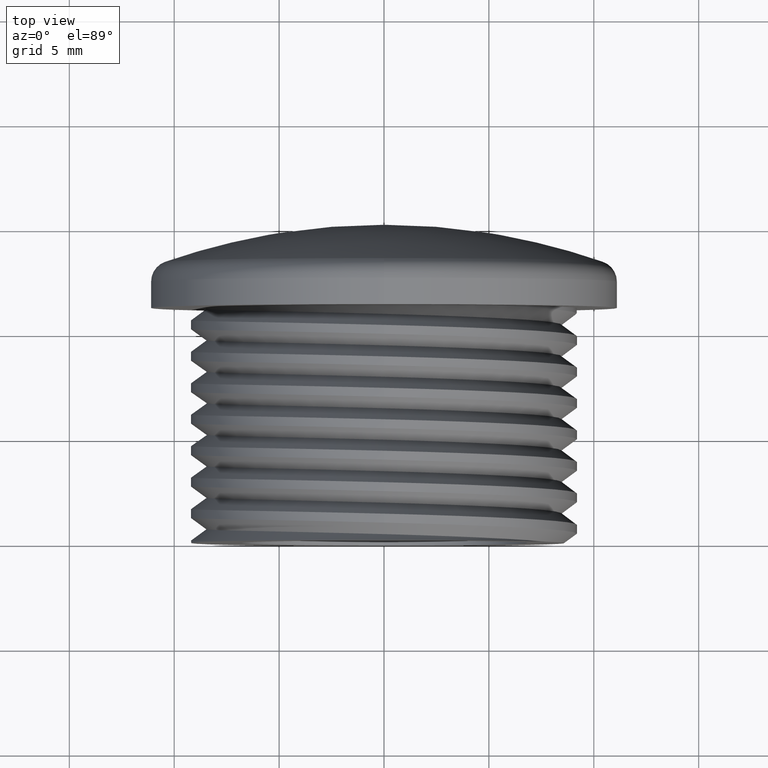
[diagram: clean part render]
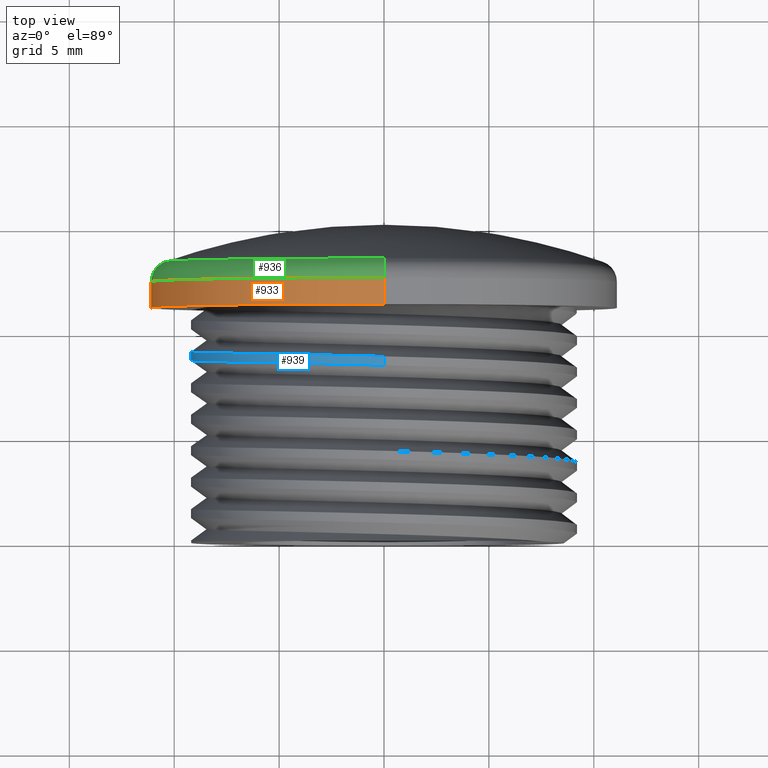
[diagram: same view with three faces highlighted in distinct colors, each labeled with its STEP entity id]
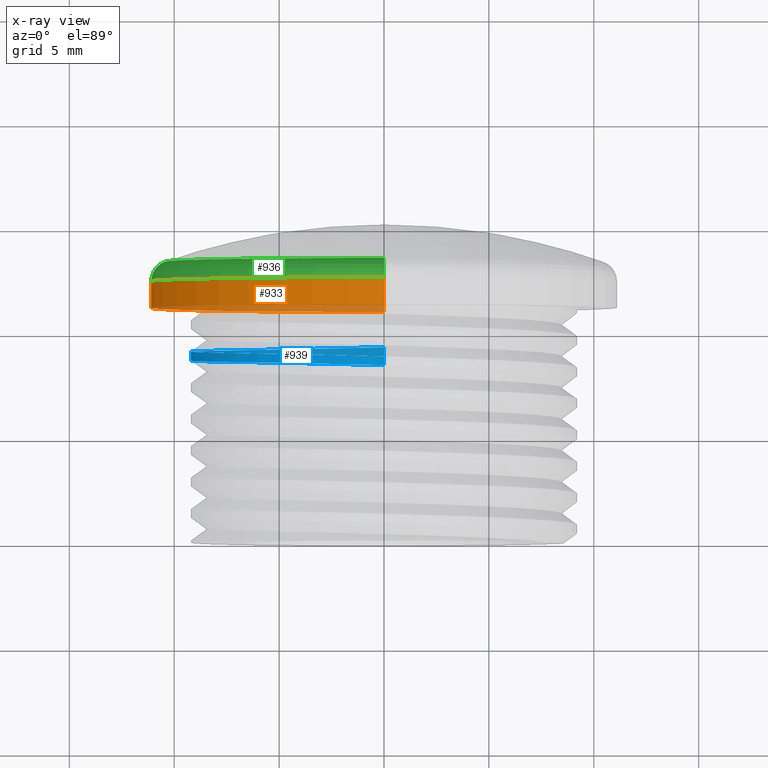
[diagram: x-ray of the same camera — body ghosted, the three highlighted faces saturated]
A machine part, top view with three faces highlighted in distinct colors.
The next image is the same camera in x-ray (body ghosted, the three faces saturated) — at least one of them is partly hidden behind the body in this view.
Their STEP definitions:

[orange] entity #933 — the highlighted cylindrical surface (partial cylindrical patch) has radius 11.1 mm, axis along (-0, -1, -0).
#521 = ORIENTED_EDGE ( 'NONE', *, *, #881, .T. ) ;
#575 = ORIENTED_EDGE ( 'NONE', *, *, #890, .F. ) ;
#602 = ORIENTED_EDGE ( 'NONE', *, *, #892, .F. ) ;
#626 = ORIENTED_EDGE ( 'NONE', *, *, #896, .T. ) ;
#630 = EDGE_LOOP ( 'NONE', ( #602, #521, #626, #575 ) ) ;
#705 = VERTEX_POINT ( 'NONE', #750 ) ;
#713 = VERTEX_POINT ( 'NONE', #810 ) ;
#720 = VERTEX_POINT ( 'NONE', #794 ) ;
#721 = VERTEX_POINT ( 'NONE', #803 ) ;
#750 = CARTESIAN_POINT ( 'NONE',  ( 1.359357947053562200E-015, 11.15795425656142800, 11.10000000000000000 ) ) ;
#794 = CARTESIAN_POINT ( 'NONE',  ( 1.359357947053562200E-015, 12.41687276769891700, 11.10000000000000000 ) ) ;
#803 = CARTESIAN_POINT ( 'NONE',  ( 0.0000000000000000000, 12.41687276769891700, -11.10000000000000000 ) ) ;
#810 = CARTESIAN_POINT ( 'NONE',  ( 0.0000000000000000000, 11.15795425656142800, -11.10000000000000000 ) ) ;
#881 = EDGE_CURVE ( 'NONE', #720, #721, #2108, .T. ) ;
#890 = EDGE_CURVE ( 'NONE', #705, #713, #2106, .T. ) ;
#892 = EDGE_CURVE ( 'NONE', #720, #705, #2230, .T. ) ;
#896 = EDGE_CURVE ( 'NONE', #721, #713, #2232, .T. ) ;
#933 = ADVANCED_FACE ( 'NONE', ( #1770 ), #1771, .T. ) ;
#1742 = DIRECTION ( 'NONE',  ( 0.0000000000000000000, 0.0000000000000000000, -1.000000000000000000 ) ) ;
#1770 = FACE_OUTER_BOUND ( 'NONE', #630, .T. ) ;
#1771 = CYLINDRICAL_SURFACE ( 'NONE', #2156, 11.10000000000000000 ) ;
#1772 = DIRECTION ( 'NONE',  ( -0.0000000000000000000, -1.000000000000000000, -0.0000000000000000000 ) ) ;
#1775 = CARTESIAN_POINT ( 'NONE',  ( 0.0000000000000000000, 21.15795425656142800, 0.0000000000000000000 ) ) ;
#2105 = AXIS2_PLACEMENT_3D ( 'NONE', #2565, #2568, #2588 ) ;
#2106 = CIRCLE ( 'NONE', #2116, 11.10000000000000000 ) ;
#2108 = CIRCLE ( 'NONE', #2105, 11.10000000000000000 ) ;
#2114 = VECTOR ( 'NONE', #2247, 1000.000000000000000 ) ;
#2116 = AXIS2_PLACEMENT_3D ( 'NONE', #2242, #2205, #2235 ) ;
#2117 = VECTOR ( 'NONE', #2215, 1000.000000000000000 ) ;
#2156 = AXIS2_PLACEMENT_3D ( 'NONE', #1775, #1772, #1742 ) ;
#2205 = DIRECTION ( 'NONE',  ( -0.0000000000000000000, -1.000000000000000000, -0.0000000000000000000 ) ) ;
#2215 = DIRECTION ( 'NONE',  ( -0.0000000000000000000, -1.000000000000000000, -0.0000000000000000000 ) ) ;
#2230 = LINE ( 'NONE', #2243, #2117 ) ;
#2232 = LINE ( 'NONE', #2241, #2114 ) ;
#2235 = DIRECTION ( 'NONE',  ( 0.0000000000000000000, 0.0000000000000000000, 1.000000000000000000 ) ) ;
#2241 = CARTESIAN_POINT ( 'NONE',  ( 0.0000000000000000000, 21.15795425656142800, -11.10000000000000000 ) ) ;
#2242 = CARTESIAN_POINT ( 'NONE',  ( 0.0000000000000000000, 11.15795425656142800, 0.0000000000000000000 ) ) ;
#2243 = CARTESIAN_POINT ( 'NONE',  ( 1.359357947053562200E-015, 21.15795425656142800, 11.10000000000000000 ) ) ;
#2247 = DIRECTION ( 'NONE',  ( -0.0000000000000000000, -1.000000000000000000, -0.0000000000000000000 ) ) ;
#2565 = CARTESIAN_POINT ( 'NONE',  ( 0.0000000000000000000, 12.41687276769891700, 0.0000000000000000000 ) ) ;
#2568 = DIRECTION ( 'NONE',  ( -0.0000000000000000000, -1.000000000000000000, -0.0000000000000000000 ) ) ;
#2588 = DIRECTION ( 'NONE',  ( 0.0000000000000000000, 0.0000000000000000000, -1.000000000000000000 ) ) ;

[blue] entity #939 — the highlighted cylindrical surface (partial cylindrical patch) has radius 9.2 mm, axis along (-0, -1, -0).
#350 = CARTESIAN_POINT ( 'NONE',  ( 1.126675055215564800E-015, 39.89106148374602900, 9.199999999999999300 ) ) ;
#352 = LINE ( 'NONE', #350, #2080 ) ;
#353 = DIRECTION ( 'NONE',  ( -0.0000000000000000000, -1.000000000000000000, -0.0000000000000000000 ) ) ;
#365 = DIRECTION ( 'NONE',  ( -0.0000000000000000000, -1.000000000000000000, -0.0000000000000000000 ) ) ;
#367 = LINE ( 'NONE', #368, #2082 ) ;
#368 = CARTESIAN_POINT ( 'NONE',  ( 0.0000000000000000000, 39.89106148374602900, -9.199999999999999300 ) ) ;
#459 = ORIENTED_EDGE ( 'NONE', *, *, #838, .F. ) ;
#460 = ORIENTED_EDGE ( 'NONE', *, *, #840, .T. ) ;
#489 = ORIENTED_EDGE ( 'NONE', *, *, #853, .T. ) ;
#503 = ORIENTED_EDGE ( 'NONE', *, *, #865, .T. ) ;
#663 = EDGE_LOOP ( 'NONE', ( #459, #489, #460, #503 ) ) ;
#669 = CARTESIAN_POINT ( 'NONE',  ( -1.226977967534813800E-011, 9.444690285272459500, -9.199999999999995700 ) ) ;
#681 = VERTEX_POINT ( 'NONE', #669 ) ;
#684 = VERTEX_POINT ( 'NONE', #732 ) ;
#697 = VERTEX_POINT ( 'NONE', #768 ) ;
#724 = VERTEX_POINT ( 'NONE', #800 ) ;
#732 = CARTESIAN_POINT ( 'NONE',  ( -1.690012582823347700E-015, 8.694690285272763200, 9.199999999999999300 ) ) ;
#768 = CARTESIAN_POINT ( 'NONE',  ( 5.633375276077824100E-016, 9.021218227850093600, -9.199999999999999300 ) ) ;
#800 = CARTESIAN_POINT ( 'NONE',  ( -1.690012582823347300E-015, 8.271218227850095400, 9.199999999999999300 ) ) ;
#838 = EDGE_CURVE ( 'NONE', #684, #724, #352, .T. ) ;
#840 = EDGE_CURVE ( 'NONE', #681, #697, #367, .T. ) ;
#853 = EDGE_CURVE ( 'NONE', #684, #681, #2717, .T. ) ;
#865 = EDGE_CURVE ( 'NONE', #697, #724, #2697, .T. ) ;
#939 = ADVANCED_FACE ( 'NONE', ( #1794 ), #1814, .T. ) ;
#1794 = FACE_OUTER_BOUND ( 'NONE', #663, .T. ) ;
#1810 = CARTESIAN_POINT ( 'NONE',  ( 0.0000000000000000000, 39.89106148374602900, 0.0000000000000000000 ) ) ;
#1814 = CYLINDRICAL_SURFACE ( 'NONE', #2164, 9.199999999999999300 ) ;
#1815 = DIRECTION ( 'NONE',  ( -0.0000000000000000000, -1.000000000000000000, -0.0000000000000000000 ) ) ;
#1816 = DIRECTION ( 'NONE',  ( 0.0000000000000000000, 0.0000000000000000000, -1.000000000000000000 ) ) ;
#2080 = VECTOR ( 'NONE', #353, 1000.000000000000000 ) ;
#2082 = VECTOR ( 'NONE', #365, 1000.000000000000000 ) ;
#2164 = AXIS2_PLACEMENT_3D ( 'NONE', #1810, #1815, #1816 ) ;
#2399 = CARTESIAN_POINT ( 'NONE',  ( -9.199999999999999300, 9.069690285272761400, -1.126675055215565000E-015 ) ) ;
#2400 = CARTESIAN_POINT ( 'NONE',  ( -6.505382386916237700, 9.257190285272761400, -6.505382386916238600 ) ) ;
#2404 = CARTESIAN_POINT ( 'NONE',  ( -9.200000000000004600, 9.163440285272761400, -3.810764773832475700 ) ) ;
#2406 = CARTESIAN_POINT ( 'NONE',  ( -9.200000000000004600, 8.975940285272761400, 3.810764773832473900 ) ) ;
#2408 = CARTESIAN_POINT ( 'NONE',  ( -1.690012582823347700E-015, 8.694690285272763200, 9.199999999999999300 ) ) ;
#2409 = CARTESIAN_POINT ( 'NONE',  ( -3.810764773837557000, 9.350940285272585600, -9.199999999994924200 ) ) ;
#2410 = CARTESIAN_POINT ( 'NONE',  ( -6.505382386916239500, 8.882190285272761400, 6.505382386916237700 ) ) ;
#2412 = CARTESIAN_POINT ( 'NONE',  ( -1.226977967534813800E-011, 9.444690285272459500, -9.199999999999995700 ) ) ;
#2413 = CARTESIAN_POINT ( 'NONE',  ( -3.810764773832481000, 8.788440285272761400, 9.200000000000002800 ) ) ;
#2472 = CARTESIAN_POINT ( 'NONE',  ( 5.633375276077824100E-016, 9.021218227850093600, -9.199999999999999300 ) ) ;
#2486 = CARTESIAN_POINT ( 'NONE',  ( -3.810764773832479700, 8.927468227850106100, -9.200000000000018800 ) ) ;
#2495 = CARTESIAN_POINT ( 'NONE',  ( -6.505382386916245700, 8.833718227850104300, -6.505382386916246600 ) ) ;
#2496 = CARTESIAN_POINT ( 'NONE',  ( -1.690012582823347300E-015, 8.271218227850095400, 9.199999999999999300 ) ) ;
#2497 = CARTESIAN_POINT ( 'NONE',  ( -3.810764773832486400, 8.364968227850109600, 9.200000000000017100 ) ) ;
#2498 = CARTESIAN_POINT ( 'NONE',  ( -9.200000000000018800, 8.739968227850107900, -3.810764773832481000 ) ) ;
#2500 = CARTESIAN_POINT ( 'NONE',  ( -9.200000000000018800, 8.552468227850106100, 3.810764773832478800 ) ) ;
#2507 = CARTESIAN_POINT ( 'NONE',  ( -6.505382386916247500, 8.458718227850106100, 6.505382386916245700 ) ) ;
#2508 = CARTESIAN_POINT ( 'NONE',  ( -9.200000000000013500, 8.646218227850107900, -1.126675055215566600E-015 ) ) ;
#2697 =( BOUNDED_CURVE ( )  B_SPLINE_CURVE ( 2, ( #2472, #2486, #2495, #2498, #2508, #2500, #2507, #2497, #2496 ),
 .UNSPECIFIED., .F., .T. ) 
 B_SPLINE_CURVE_WITH_KNOTS ( ( 3, 2, 2, 2, 3 ),
 ( 0.08263762000673384500, 0.08988826969231500400, 0.09713891937789621800, 0.1043895690634773800, 0.1116402187490585900 ),
 .UNSPECIFIED. ) 
 CURVE ( )  GEOMETRIC_REPRESENTATION_ITEM ( )  RATIONAL_B_SPLINE_CURVE ( ( 1.000000000000000000, 0.9238795325112867400, 1.000000000000000000, 0.9238795325112867400, 1.000000000000000000, 0.9238795325112867400, 1.000000000000000000, 0.9238795325112867400, 1.000000000000000000 ) ) 
 REPRESENTATION_ITEM ( '' )  );
#2717 =( BOUNDED_CURVE ( )  B_SPLINE_CURVE ( 2, ( #2408, #2413, #2410, #2406, #2399, #2404, #2400, #2409, #2412 ),
 .UNSPECIFIED., .F., .F. ) 
 B_SPLINE_CURVE_WITH_KNOTS ( ( 3, 2, 2, 2, 3 ),
 ( 0.3378533863008215100, 0.3451035153012365100, 0.3523536443016516100, 0.3596037733020666100, 0.3668539023024817200 ),
 .UNSPECIFIED. ) 
 CURVE ( )  GEOMETRIC_REPRESENTATION_ITEM ( )  RATIONAL_B_SPLINE_CURVE ( ( 1.000000000000000000, 0.9238795325112867400, 1.000000000000000000, 0.9238795325112867400, 1.000000000000000000, 0.9238795325112867400, 1.000000000000000000, 0.9238795325114194100, 0.9999999999998673300 ) ) 
 REPRESENTATION_ITEM ( '' )  );

[green] entity #936 — the highlighted toroidal blend (fillet) surface has major radius 10.1 mm and minor (blend) radius 1 mm.
#583 = ORIENTED_EDGE ( 'NONE', *, *, #881, .F. ) ;
#591 = ORIENTED_EDGE ( 'NONE', *, *, #899, .F. ) ;
#612 = ORIENTED_EDGE ( 'NONE', *, *, #903, .F. ) ;
#616 = ORIENTED_EDGE ( 'NONE', *, *, #889, .T. ) ;
#618 = ORIENTED_EDGE ( 'NONE', *, *, #911, .F. ) ;
#647 = EDGE_LOOP ( 'NONE', ( #618, #612, #591, #616, #583 ) ) ;
#717 = VERTEX_POINT ( 'NONE', #797 ) ;
#720 = VERTEX_POINT ( 'NONE', #794 ) ;
#721 = VERTEX_POINT ( 'NONE', #803 ) ;
#722 = VERTEX_POINT ( 'NONE', #801 ) ;
#741 = VERTEX_POINT ( 'NONE', #791 ) ;
#791 = CARTESIAN_POINT ( 'NONE',  ( -10.42838178621515700, 13.36141784469744600, 0.0000000000000000000 ) ) ;
#794 = CARTESIAN_POINT ( 'NONE',  ( 1.359357947053562200E-015, 12.41687276769891700, 11.10000000000000000 ) ) ;
#797 = CARTESIAN_POINT ( 'NONE',  ( 1.318233192265530200E-015, 13.36141784469744400, 10.42838178621518200 ) ) ;
#801 = CARTESIAN_POINT ( 'NONE',  ( -3.851859888774471700E-031, 13.36141784469744400, -10.42838178621518200 ) ) ;
#803 = CARTESIAN_POINT ( 'NONE',  ( 0.0000000000000000000, 12.41687276769891700, -11.10000000000000000 ) ) ;
#881 = EDGE_CURVE ( 'NONE', #720, #721, #2108, .T. ) ;
#889 = EDGE_CURVE ( 'NONE', #722, #721, #2102, .T. ) ;
#899 = EDGE_CURVE ( 'NONE', #722, #741, #2123, .T. ) ;
#903 = EDGE_CURVE ( 'NONE', #741, #717, #2127, .T. ) ;
#911 = EDGE_CURVE ( 'NONE', #717, #720, #2134, .T. ) ;
#936 = ADVANCED_FACE ( 'NONE', ( #1805 ), #2163, .T. ) ;
#1798 = DIRECTION ( 'NONE',  ( 0.0000000000000000000, 0.0000000000000000000, -1.000000000000000000 ) ) ;
#1805 = FACE_OUTER_BOUND ( 'NONE', #647, .T. ) ;
#1806 = CARTESIAN_POINT ( 'NONE',  ( 0.0000000000000000000, 12.41687276769891700, 0.0000000000000000000 ) ) ;
#1808 = DIRECTION ( 'NONE',  ( -0.0000000000000000000, -1.000000000000000000, -0.0000000000000000000 ) ) ;
#2102 = CIRCLE ( 'NONE', #2104, 1.000000000000000900 ) ;
#2104 = AXIS2_PLACEMENT_3D ( 'NONE', #2220, #2206, #2219 ) ;
#2105 = AXIS2_PLACEMENT_3D ( 'NONE', #2565, #2568, #2588 ) ;
#2108 = CIRCLE ( 'NONE', #2105, 11.10000000000000000 ) ;
#2120 = AXIS2_PLACEMENT_3D ( 'NONE', #2273, #2279, #2250 ) ;
#2123 = CIRCLE ( 'NONE', #2124, 10.42838178621518400 ) ;
#2124 = AXIS2_PLACEMENT_3D ( 'NONE', #2217, #2267, #2264 ) ;
#2127 = CIRCLE ( 'NONE', #2120, 10.42838178621518400 ) ;
#2134 = CIRCLE ( 'NONE', #2141, 1.000000000000000900 ) ;
#2141 = AXIS2_PLACEMENT_3D ( 'NONE', #2313, #2309, #2312 ) ;
#2163 = TOROIDAL_SURFACE ( 'NONE', #2166, 10.10000000000000100, 1.000000000000000000 ) ;
#2166 = AXIS2_PLACEMENT_3D ( 'NONE', #1806, #1808, #1798 ) ;
#2206 = DIRECTION ( 'NONE',  ( -1.000000000000000000, 0.0000000000000000000, 0.0000000000000000000 ) ) ;
#2217 = CARTESIAN_POINT ( 'NONE',  ( 1.734723475976807100E-015, 13.36141784469744400, 0.0000000000000000000 ) ) ;
#2219 = DIRECTION ( 'NONE',  ( 0.0000000000000000000, 0.0000000000000000000, 1.000000000000000000 ) ) ;
#2220 = CARTESIAN_POINT ( 'NONE',  ( 0.0000000000000000000, 12.41687276769891700, -10.10000000000000100 ) ) ;
#2250 = DIRECTION ( 'NONE',  ( 0.0000000000000000000, 0.0000000000000000000, -1.000000000000000000 ) ) ;
#2264 = DIRECTION ( 'NONE',  ( 0.0000000000000000000, 0.0000000000000000000, -1.000000000000000000 ) ) ;
#2267 = DIRECTION ( 'NONE',  ( 0.0000000000000000000, 1.000000000000000000, 0.0000000000000000000 ) ) ;
#2273 = CARTESIAN_POINT ( 'NONE',  ( 1.734723475976807100E-015, 13.36141784469744400, 0.0000000000000000000 ) ) ;
#2279 = DIRECTION ( 'NONE',  ( 0.0000000000000000000, 1.000000000000000000, 0.0000000000000000000 ) ) ;
#2309 = DIRECTION ( 'NONE',  ( 1.000000000000000000, 0.0000000000000000000, -1.224646799147353500E-016 ) ) ;
#2312 = DIRECTION ( 'NONE',  ( -1.224646799147353500E-016, 0.0000000000000000000, -1.000000000000000000 ) ) ;
#2313 = CARTESIAN_POINT ( 'NONE',  ( 1.236893267138827200E-015, 12.41687276769891700, 10.10000000000000100 ) ) ;
#2565 = CARTESIAN_POINT ( 'NONE',  ( 0.0000000000000000000, 12.41687276769891700, 0.0000000000000000000 ) ) ;
#2568 = DIRECTION ( 'NONE',  ( -0.0000000000000000000, -1.000000000000000000, -0.0000000000000000000 ) ) ;
#2588 = DIRECTION ( 'NONE',  ( 0.0000000000000000000, 0.0000000000000000000, -1.000000000000000000 ) ) ;